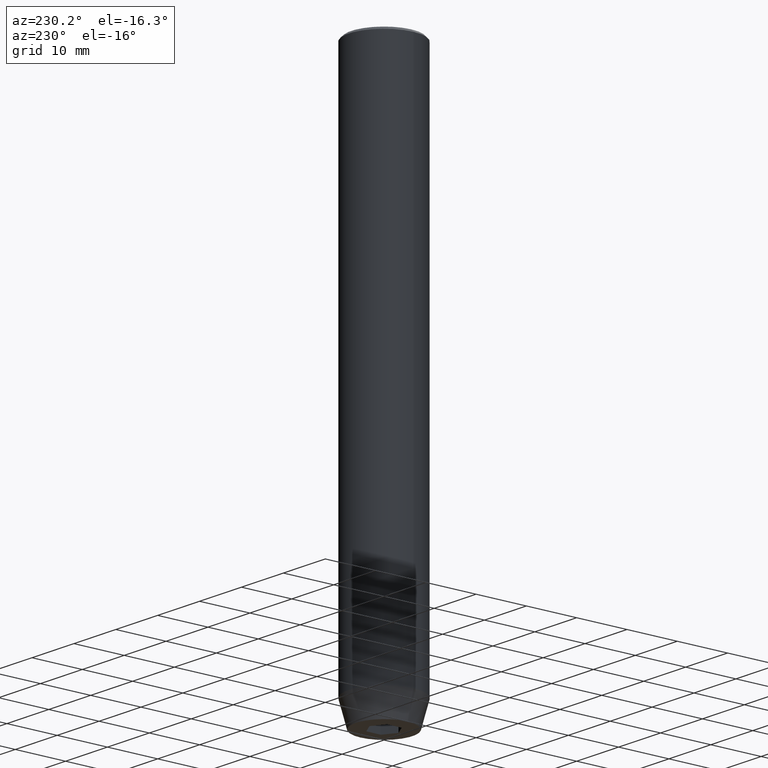
[diagram: clean part render]
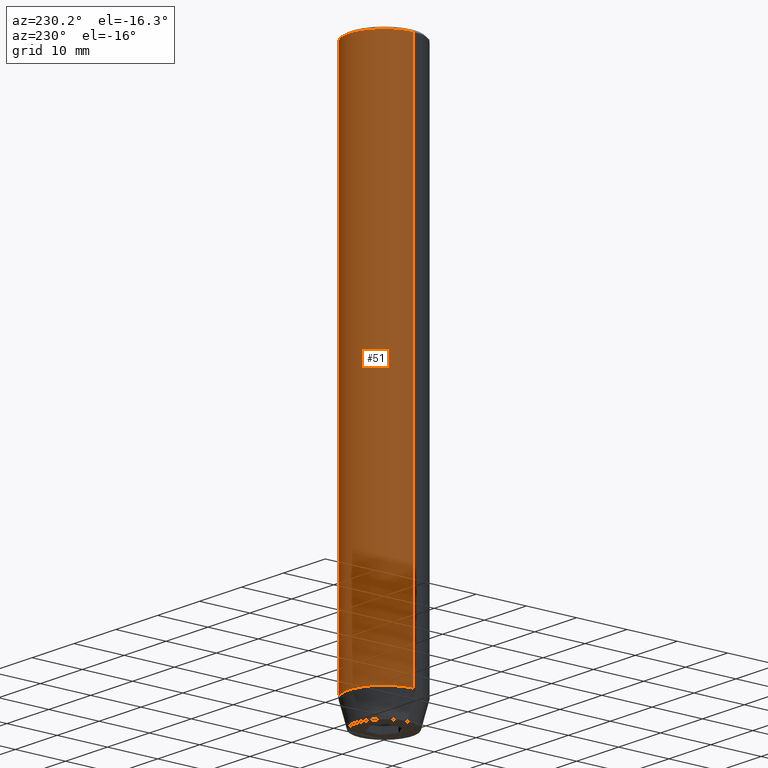
[diagram: same view with one face highlighted and labeled with its STEP entity id]
A machine part, auxiliary view. The second image highlights one B-rep face of the part: STEP entity #51.
In plain terms, the highlighted cylindrical surface (partial cylindrical patch) has radius 7 mm, axis along (-0, -0, 1).
Its self-contained STEP definition (entity closure, byte-faithful):
#5 = DIRECTION ( 'NONE',  ( -0.000000000000000000, -0.000000000000000000, 1.000000000000000000 ) ) ;
#18 = CARTESIAN_POINT ( 'NONE',  ( -7.000000000000000000, 8.572527594031473190E-16, 0.000000000000000000 ) ) ;
#22 = VECTOR ( 'NONE', #5, 1000.000000000000000 ) ;
#39 = ORIENTED_EDGE ( 'NONE', *, *, #447, .T. ) ;
#51 = ADVANCED_FACE ( 'NONE', ( #418 ), #66, .T. ) ;
#55 = CARTESIAN_POINT ( 'NONE',  ( 7.000000000000000000, 0.000000000000000000, -0.5000000000000186517 ) ) ;
#66 = CYLINDRICAL_SURFACE ( 'NONE', #486, 7.000000000000000000 ) ;
#76 = AXIS2_PLACEMENT_3D ( 'NONE', #179, #365, #540 ) ;
#157 = DIRECTION ( 'NONE',  ( 1.000000000000000000, 0.000000000000000000, 0.000000000000000000 ) ) ;
#169 = CARTESIAN_POINT ( 'NONE',  ( 7.000000000000000000, 0.000000000000000000, -105.0000000000000142 ) ) ;
#179 = CARTESIAN_POINT ( 'NONE',  ( 0.000000000000000000, 0.000000000000000000, -0.5000000000000186517 ) ) ;
#196 = DIRECTION ( 'NONE',  ( -0.000000000000000000, -0.000000000000000000, 1.000000000000000000 ) ) ;
#201 = ORIENTED_EDGE ( 'NONE', *, *, #541, .T. ) ;
#206 = DIRECTION ( 'NONE',  ( -0.000000000000000000, -0.000000000000000000, 1.000000000000000000 ) ) ;
#223 = EDGE_LOOP ( 'NONE', ( #39, #201, #370, #359 ) ) ;
#254 = DIRECTION ( 'NONE',  ( 1.000000000000000000, 0.000000000000000000, 0.000000000000000000 ) ) ;
#258 = VERTEX_POINT ( 'NONE', #169 ) ;
#324 = LINE ( 'NONE', #553, #22 ) ;
#340 = VERTEX_POINT ( 'NONE', #406 ) ;
#347 = CIRCLE ( 'NONE', #374, 7.000000000000000000 ) ;
#348 = LINE ( 'NONE', #18, #475 ) ;
#352 = CARTESIAN_POINT ( 'NONE',  ( 0.000000000000000000, 0.000000000000000000, -105.0000000000000142 ) ) ;
#359 = ORIENTED_EDGE ( 'NONE', *, *, #394, .F. ) ;
#365 = DIRECTION ( 'NONE',  ( 0.000000000000000000, 0.000000000000000000, -1.000000000000000000 ) ) ;
#370 = ORIENTED_EDGE ( 'NONE', *, *, #421, .T. ) ;
#374 = AXIS2_PLACEMENT_3D ( 'NONE', #352, #481, #157 ) ;
#391 = VERTEX_POINT ( 'NONE', #449 ) ;
#394 = EDGE_CURVE ( 'NONE', #258, #413, #324, .T. ) ;
#406 = CARTESIAN_POINT ( 'NONE',  ( -7.000000000000000000, 8.572527594031473190E-16, -105.0000000000000142 ) ) ;
#413 = VERTEX_POINT ( 'NONE', #55 ) ;
#418 = FACE_OUTER_BOUND ( 'NONE', #223, .T. ) ;
#421 = EDGE_CURVE ( 'NONE', #391, #413, #578, .T. ) ;
#447 = EDGE_CURVE ( 'NONE', #258, #340, #347, .T. ) ;
#449 = CARTESIAN_POINT ( 'NONE',  ( -7.000000000000000000, 8.572527594031473190E-16, -0.5000000000000186517 ) ) ;
#475 = VECTOR ( 'NONE', #206, 1000.000000000000000 ) ;
#481 = DIRECTION ( 'NONE',  ( -0.000000000000000000, -0.000000000000000000, 1.000000000000000000 ) ) ;
#486 = AXIS2_PLACEMENT_3D ( 'NONE', #517, #196, #254 ) ;
#517 = CARTESIAN_POINT ( 'NONE',  ( 0.000000000000000000, 0.000000000000000000, 0.000000000000000000 ) ) ;
#540 = DIRECTION ( 'NONE',  ( 1.000000000000000000, 0.000000000000000000, 0.000000000000000000 ) ) ;
#541 = EDGE_CURVE ( 'NONE', #340, #391, #348, .T. ) ;
#553 = CARTESIAN_POINT ( 'NONE',  ( 7.000000000000000000, 0.000000000000000000, 0.000000000000000000 ) ) ;
#578 = CIRCLE ( 'NONE', #76, 7.000000000000000000 ) ;